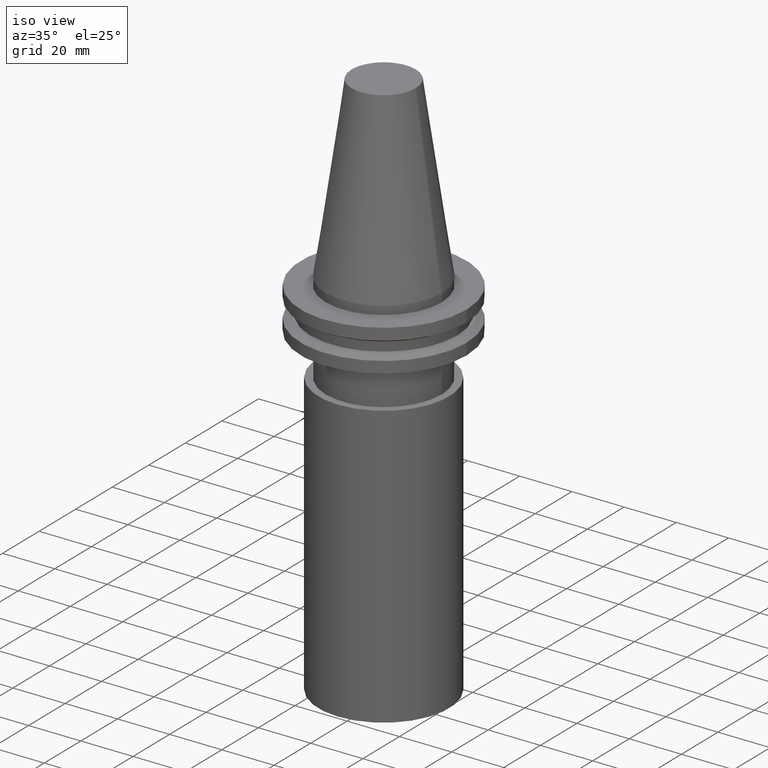
[diagram: clean part render]
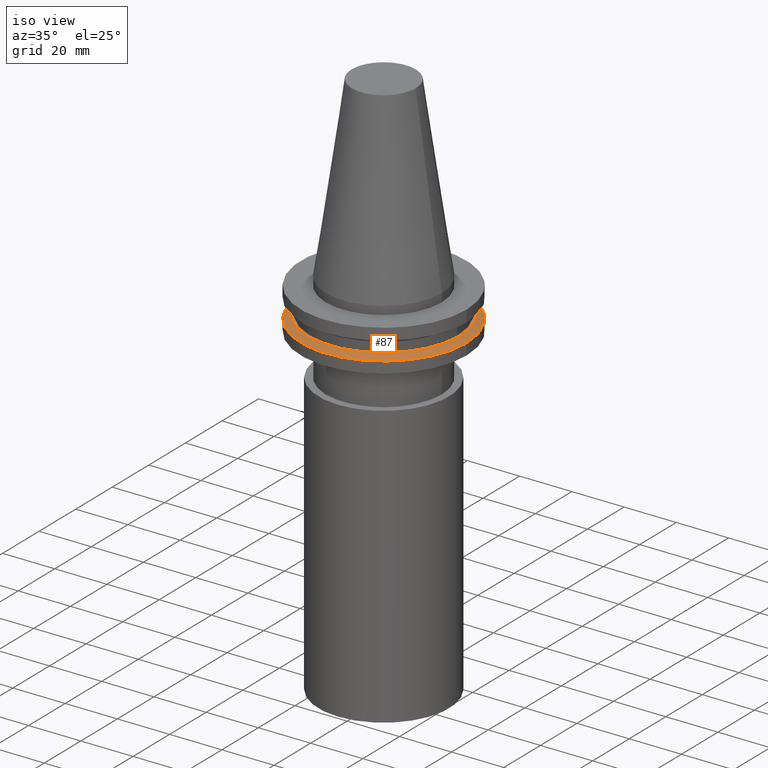
[diagram: same view with one face highlighted and labeled with its STEP entity id]
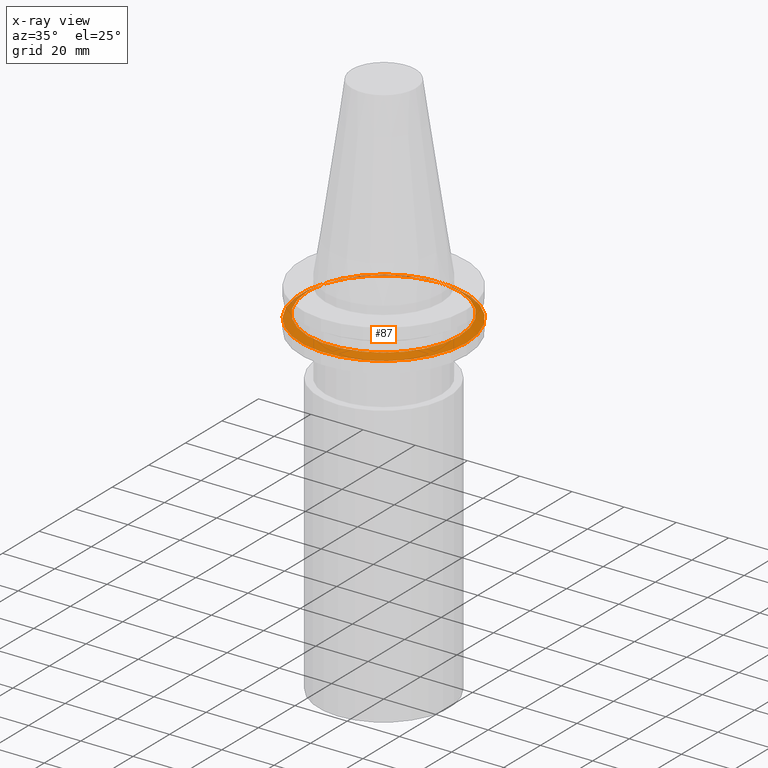
[diagram: x-ray of the same camera — body ghosted, the highlighted face saturated]
A machine part, iso view. The second image highlights one B-rep face of the part: STEP entity #87.
The next image is the same camera in x-ray: the body ghosted, the highlighted face saturated — about 6% of this face is hidden behind the body in this view.
In plain terms, the highlighted conical surface has half-angle 60 deg.
Its self-contained STEP definition (entity closure, byte-faithful):
#13 = AXIS2_PLACEMENT_3D ( 'NONE', #245, #356, #59 ) ;
#16 = EDGE_LOOP ( 'NONE', ( #204 ) ) ;
#59 = DIRECTION ( 'NONE',  ( -1.000000000000000000, 0.000000000000000000, 0.000000000000000000 ) ) ;
#87 = ADVANCED_FACE ( 'NONE', ( #390, #117 ), #160, .T. ) ;
#90 = AXIS2_PLACEMENT_3D ( 'NONE', #203, #108, #173 ) ;
#108 = DIRECTION ( 'NONE',  ( -0.000000000000000000, -0.000000000000000000, 1.000000000000000000 ) ) ;
#117 = FACE_OUTER_BOUND ( 'NONE', #234, .T. ) ;
#156 = EDGE_CURVE ( 'NONE', #296, #296, #299, .T. ) ;
#160 = CONICAL_SURFACE ( 'NONE', #13, 31.75000000000000000, 1.047197551196597853 ) ;
#173 = DIRECTION ( 'NONE',  ( 1.000000000000000000, 0.000000000000000000, 0.000000000000000000 ) ) ;
#177 = CARTESIAN_POINT ( 'NONE',  ( 31.75000000000000000, 0.000000000000000000, -14.65472339340266572 ) ) ;
#203 = CARTESIAN_POINT ( 'NONE',  ( 0.000000000000000000, 0.000000000000000000, -13.05499999999999794 ) ) ;
#204 = ORIENTED_EDGE ( 'NONE', *, *, #361, .F. ) ;
#234 = EDGE_LOOP ( 'NONE', ( #316 ) ) ;
#244 = DIRECTION ( 'NONE',  ( 1.000000000000000000, 0.000000000000000000, 0.000000000000000000 ) ) ;
#245 = CARTESIAN_POINT ( 'NONE',  ( 0.000000000000000000, 0.000000000000000000, -14.65472339340266572 ) ) ;
#273 = VERTEX_POINT ( 'NONE', #294 ) ;
#274 = CARTESIAN_POINT ( 'NONE',  ( 0.000000000000000000, 0.000000000000000000, -14.65472339340266572 ) ) ;
#294 = CARTESIAN_POINT ( 'NONE',  ( 28.97919780457008088, 0.000000000000000000, -13.05499999999999794 ) ) ;
#296 = VERTEX_POINT ( 'NONE', #177 ) ;
#299 = CIRCLE ( 'NONE', #347, 31.75000000000000000 ) ;
#316 = ORIENTED_EDGE ( 'NONE', *, *, #156, .T. ) ;
#347 = AXIS2_PLACEMENT_3D ( 'NONE', #274, #387, #244 ) ;
#354 = CIRCLE ( 'NONE', #90, 28.97919780457008088 ) ;
#356 = DIRECTION ( 'NONE',  ( 0.000000000000000000, 0.000000000000000000, -1.000000000000000000 ) ) ;
#361 = EDGE_CURVE ( 'NONE', #273, #273, #354, .T. ) ;
#387 = DIRECTION ( 'NONE',  ( -0.000000000000000000, -0.000000000000000000, 1.000000000000000000 ) ) ;
#390 = FACE_BOUND ( 'NONE', #16, .T. ) ;